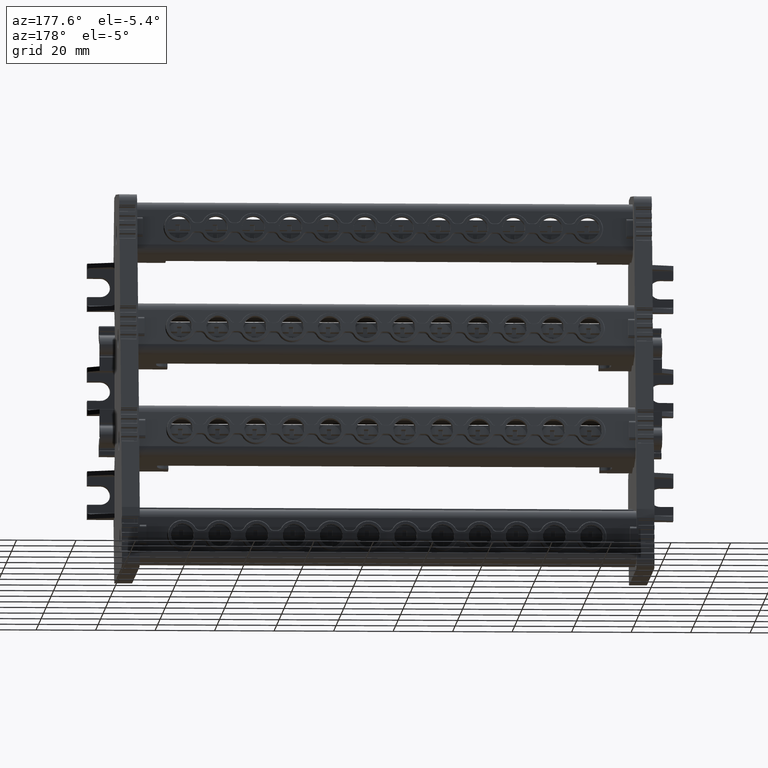
[diagram: clean part render]
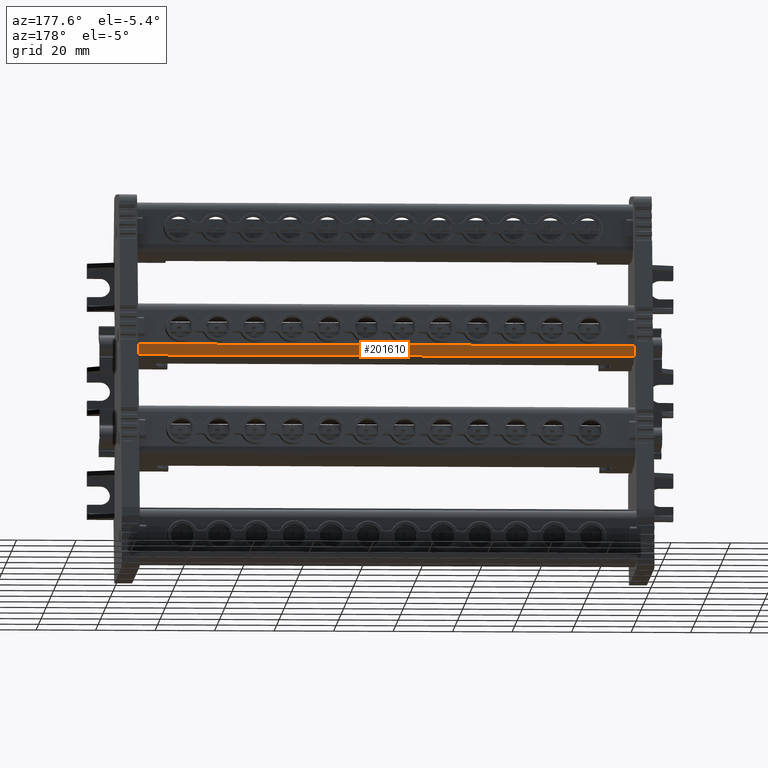
[diagram: same view with one face highlighted and labeled with its STEP entity id]
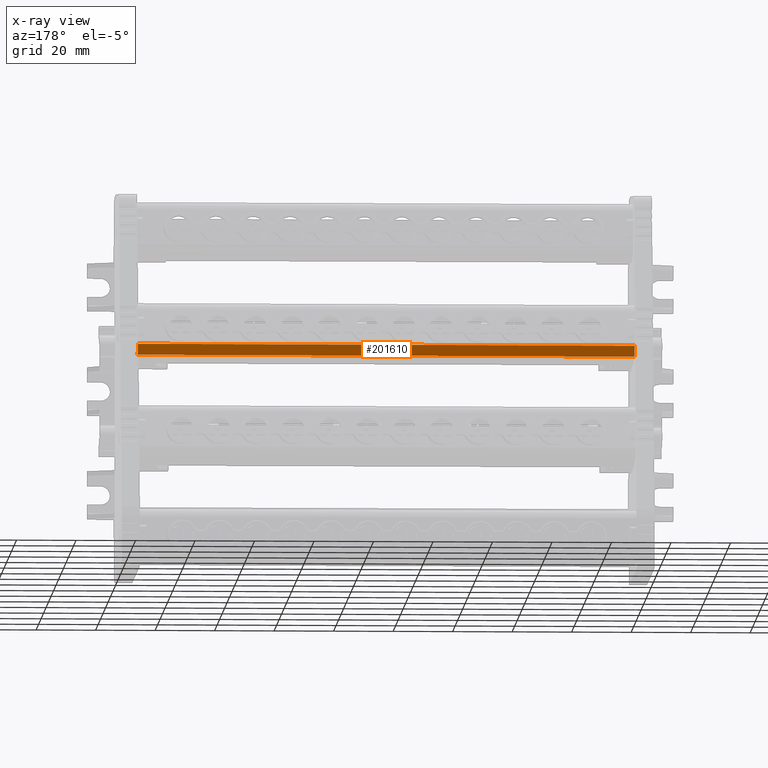
[diagram: x-ray of the same camera — body ghosted, the highlighted face saturated]
A machine part, auxiliary view. The second image highlights one B-rep face of the part: STEP entity #201610.
The next image is the same camera in x-ray: the body ghosted, the highlighted face saturated — about 0% of this face is hidden behind the body in this view.
In plain terms, the highlighted cylindrical surface (edge-blend (fillet) strip) has radius 3 mm, axis along (-1, 0, 0).
Its self-contained STEP definition (entity closure, byte-faithful):
#17542 = CARTESIAN_POINT ( 'NONE',  ( -1246.910428931360000, 733.2384962732779700, 2307.897253530512400 ) ) ;
#17543 = CARTESIAN_POINT ( 'NONE',  ( -1246.910428931359800, 732.9557131628590700, 2307.620573312899100 ) ) ;
#17556 = CARTESIAN_POINT ( 'NONE',  ( -1246.910428931359500, 734.0079300551644800, 2310.055017919128200 ) ) ;
#17558 = CARTESIAN_POINT ( 'NONE',  ( -1246.910428931360000, 734.0001625190209300, 2309.659470329401800 ) ) ;
#17580 = CARTESIAN_POINT ( 'NONE',  ( -1246.910428931359800, 733.9404962766723200, 2310.437453881121200 ) ) ;
#17583 = CARTESIAN_POINT ( 'NONE',  ( -1246.910428931359500, 733.8353702892321700, 2308.900482952018100 ) ) ;
#17586 = CARTESIAN_POINT ( 'NONE',  ( -1246.910428931359800, 733.6784076102517200, 2308.537328786733700 ) ) ;
#17599 = CARTESIAN_POINT ( 'NONE',  ( -1246.910428931359800, 731.5585012455648000, 2306.971628039159900 ) ) ;
#17616 = CARTESIAN_POINT ( 'NONE',  ( -1246.910428931359800, 731.9397020477517800, 2307.045726135751000 ) ) ;
#17631 = CARTESIAN_POINT ( 'NONE',  ( -1246.910428931359800, 732.3061938364364800, 2307.194729488676800 ) ) ;
#25069 = VECTOR ( 'NONE', #98906, 1000.000000000000000 ) ;
#28921 = B_SPLINE_CURVE_WITH_KNOTS ( 'NONE', 3,
 ( #89628, #89632, #89664, #89647 ),
 .UNSPECIFIED., .F., .F.,
 ( 4, 4 ),
 ( 0.0000000000000000000, 1.000000000000000000 ),
 .UNSPECIFIED. ) ;
#28955 = B_SPLINE_CURVE_WITH_KNOTS ( 'NONE', 3,
 ( #89557, #89531, #89561, #89532, #89540, #89533, #89562, #89571, #89536, #89537, #89616, #89617, #89623, #89581, #89620, #89609, #89593, #89599, #89621, #89615 ),
 .UNSPECIFIED., .F., .F.,
 ( 4, 1, 1, 1, 2, 2, 2, 1, 1, 1, 2, 2, 4 ),
 ( 0.0000000000000000000, 0.1249999999993455200, 0.1874999999990178400, 0.2187499999989982200, 0.2343749999989827600, 0.2499999999989673300, 0.4999999999990937200, 0.6249999999991376900, 0.6874999999992308400, 0.7187499999993045600, 0.7343749999993134400, 0.7499999999993223200, 1.000000000000000000 ),
 .UNSPECIFIED. ) ;
#68742 = CARTESIAN_POINT ( 'NONE',  ( -1413.910428931360500, 733.9404962766731200, 2310.437453881121700 ) ) ;
#69103 = CARTESIAN_POINT ( 'NONE',  ( -1246.910428931359800, 733.9404962766723200, 2310.437453881121200 ) ) ;
#69131 = CARTESIAN_POINT ( 'NONE',  ( -1246.910428931359800, 731.5585012455648000, 2306.971628039159900 ) ) ;
#77797 = VERTEX_POINT ( 'NONE', #98038 ) ;
#78758 = ORIENTED_EDGE ( 'NONE', *, *, #134255, .F. ) ;
#78847 = ORIENTED_EDGE ( 'NONE', *, *, #132737, .T. ) ;
#78899 = ORIENTED_EDGE ( 'NONE', *, *, #134560, .F. ) ;
#79000 = ORIENTED_EDGE ( 'NONE', *, *, #134283, .T. ) ;
#81446 = VERTEX_POINT ( 'NONE', #68742 ) ;
#82130 = VERTEX_POINT ( 'NONE', #69131 ) ;
#82133 = VERTEX_POINT ( 'NONE', #69103 ) ;
#89531 = CARTESIAN_POINT ( 'NONE',  ( -1413.910428931360500, 733.9732219037723600, 2310.251469770965300 ) ) ;
#89532 = CARTESIAN_POINT ( 'NONE',  ( -1413.910428931360900, 733.9768936950533800, 2309.648531549893100 ) ) ;
#89533 = CARTESIAN_POINT ( 'NONE',  ( -1413.910428931360700, 733.9443361873402400, 2309.417131802718400 ) ) ;
#89536 = CARTESIAN_POINT ( 'NONE',  ( -1413.910428931360500, 733.8465324015996900, 2308.923897187503400 ) ) ;
#89537 = CARTESIAN_POINT ( 'NONE',  ( -1413.910428931360900, 733.6899138442418000, 2308.554200659678400 ) ) ;
#89540 = CARTESIAN_POINT ( 'NONE',  ( -1413.910428931360900, 733.9558239846805900, 2309.486526424045700 ) ) ;
#89557 = CARTESIAN_POINT ( 'NONE',  ( -1413.910428931360500, 733.9404962766731200, 2310.437453881121700 ) ) ;
#89561 = CARTESIAN_POINT ( 'NONE',  ( -1413.910428931360200, 733.9960925154526900, 2309.972879172608400 ) ) ;
#89562 = CARTESIAN_POINT ( 'NONE',  ( -1413.910428931360500, 733.9361314510099400, 2309.370876754477600 ) ) ;
#89571 = CARTESIAN_POINT ( 'NONE',  ( -1413.910428931360700, 733.9321433453951600, 2309.349679790683700 ) ) ;
#89581 = CARTESIAN_POINT ( 'NONE',  ( -1413.910428931360700, 732.7407571597169600, 2307.482100374346400 ) ) ;
#89593 = CARTESIAN_POINT ( 'NONE',  ( -1413.910428931360500, 732.6125060171564200, 2307.395547953274200 ) ) ;
#89599 = CARTESIAN_POINT ( 'NONE',  ( -1413.910428931360700, 732.2742740368477100, 2307.180993925831400 ) ) ;
#89609 = CARTESIAN_POINT ( 'NONE',  ( -1413.910428931360900, 732.6356075238446700, 2307.410573417613700 ) ) ;
#89615 = CARTESIAN_POINT ( 'NONE',  ( -1413.910428931360500, 731.5585012455648000, 2306.971628039159900 ) ) ;
#89616 = CARTESIAN_POINT ( 'NONE',  ( -1413.910428931360200, 733.3427209905277100, 2308.048836408096600 ) ) ;
#89617 = CARTESIAN_POINT ( 'NONE',  ( -1413.910428931360700, 733.1476925366677100, 2307.818199841389300 ) ) ;
#89620 = CARTESIAN_POINT ( 'NONE',  ( -1413.910428931360500, 732.6779352785312100, 2307.438908630817900 ) ) ;
#89621 = CARTESIAN_POINT ( 'NONE',  ( -1413.910428931360200, 731.9295711125978400, 2307.043894229508200 ) ) ;
#89623 = CARTESIAN_POINT ( 'NONE',  ( -1413.910428931360700, 732.8826532932432700, 2307.587703575294200 ) ) ;
#89628 = CARTESIAN_POINT ( 'NONE',  ( -1413.910428931360500, 733.9404962766731200, 2310.437453881121700 ) ) ;
#89632 = CARTESIAN_POINT ( 'NONE',  ( -1358.243762264693500, 733.9404962766730000, 2310.437453881120700 ) ) ;
#89647 = CARTESIAN_POINT ( 'NONE',  ( -1246.910428931359800, 733.9404962766723200, 2310.437453881121200 ) ) ;
#89664 = CARTESIAN_POINT ( 'NONE',  ( -1302.577095598026700, 733.9404962766726600, 2310.437453881120700 ) ) ;
#98038 = CARTESIAN_POINT ( 'NONE',  ( -1413.910428931360500, 731.5585012455648000, 2306.971628039159900 ) ) ;
#98905 = LINE ( 'NONE', #98915, #25069 ) ;
#98906 = DIRECTION ( 'NONE',  ( 1.000000000000000000, 9.613116760809872700E-016, -4.945508709837001200E-015 ) ) ;
#98915 = CARTESIAN_POINT ( 'NONE',  ( -1303.282428931395300, 731.5585012455646800, 2306.971628039159900 ) ) ;
#113398 = EDGE_LOOP ( 'NONE', ( #78847, #78899, #78758, #79000 ) ) ;
#126542 = B_SPLINE_CURVE_WITH_KNOTS ( 'NONE', 3,
 ( #17580, #17556, #17558, #17583, #17586, #17542, #17543, #17631, #17616, #17599 ),
 .UNSPECIFIED., .F., .F.,
 ( 4, 2, 2, 2, 4 ),
 ( 0.0000000000000000000, 0.2500000000000000000, 0.5000000000000000000, 0.7500000000000000000, 1.000000000000000000 ),
 .UNSPECIFIED. ) ;
#132737 = EDGE_CURVE ( 'NONE', #82133, #82130, #126542, .T. ) ;
#134255 = EDGE_CURVE ( 'NONE', #81446, #77797, #28955, .T. ) ;
#134283 = EDGE_CURVE ( 'NONE', #81446, #82133, #28921, .T. ) ;
#134560 = EDGE_CURVE ( 'NONE', #77797, #82130, #98905, .T. ) ;
#152260 = DIRECTION ( 'NONE',  ( -1.000000000000000000, 4.555731069407388900E-015, 6.017915598920411300E-015 ) ) ;
#152291 = DIRECTION ( 'NONE',  ( 0.0000000000000000000, 0.0000000000000000000, 1.000000000000000000 ) ) ;
#152293 = FACE_OUTER_BOUND ( 'NONE', #113398, .T. ) ;
#152304 = CYLINDRICAL_SURFACE ( 'NONE', #159502, 2.999999999999669600 ) ;
#152310 = CARTESIAN_POINT ( 'NONE',  ( -1303.282428931395500, 730.9860730176358200, 2309.916509348121500 ) ) ;
#159502 = AXIS2_PLACEMENT_3D ( 'NONE', #152310, #152260, #152291 ) ;
#201610 = ADVANCED_FACE ( 'NONE', ( #152293 ), #152304, .T. ) ;